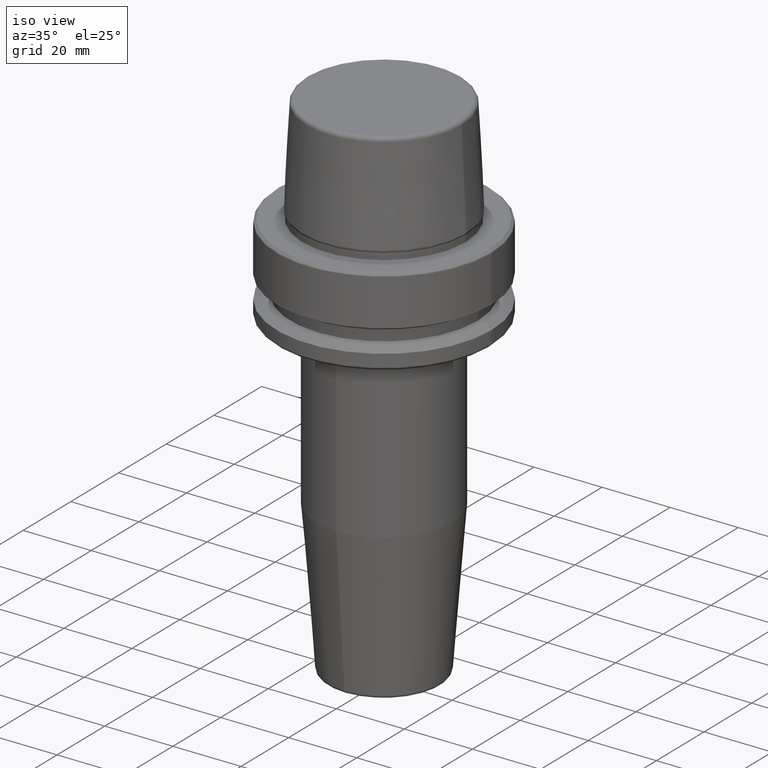
[diagram: clean part render]
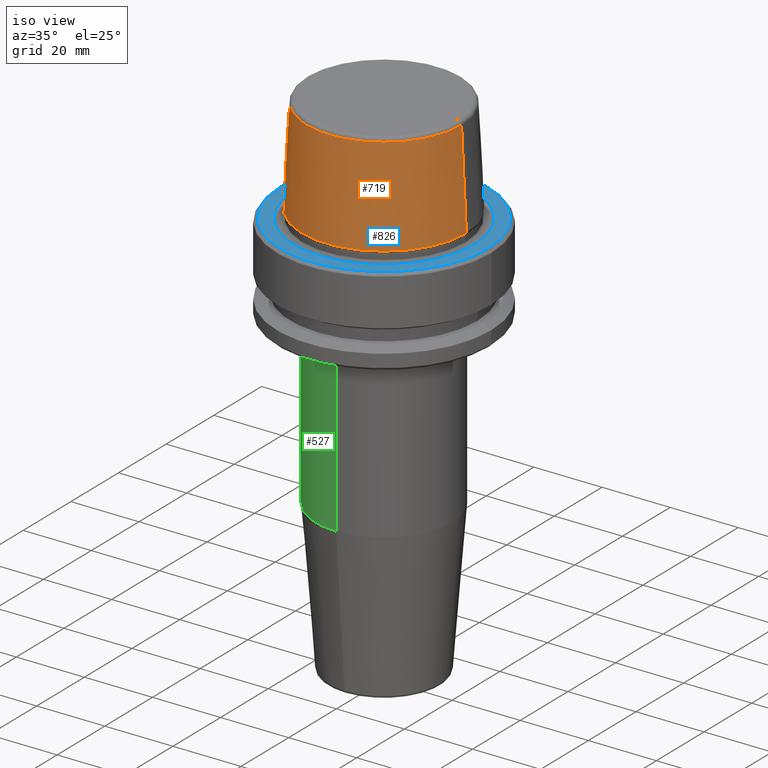
[diagram: same view with three faces highlighted in distinct colors, each labeled with its STEP entity id]
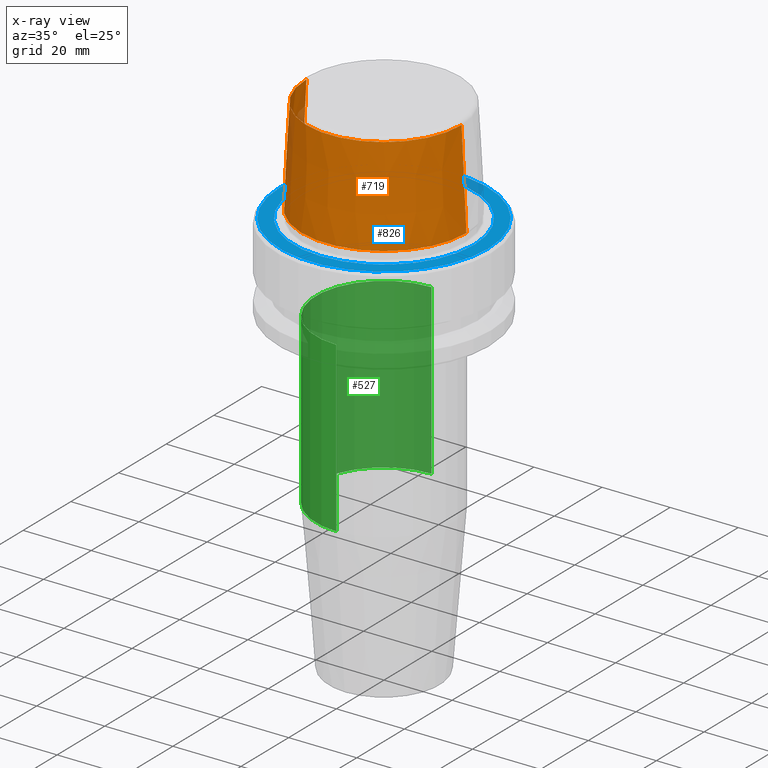
[diagram: x-ray of the same camera — body ghosted, the three highlighted faces saturated]
A machine part, iso view with three faces highlighted in distinct colors.
The next image is the same camera in x-ray (body ghosted, the three faces saturated) — at least one of them is partly hidden behind the body in this view.
Their STEP definitions:

[orange] entity #719 — the highlighted conical surface has half-angle 2.868 deg.
#15 = FACE_OUTER_BOUND ( 'NONE', #324, .T. ) ;
#43 = CARTESIAN_POINT ( 'NONE',  ( 0.0000000000000000000, 0.0000000000000000000, 30.76004333261571900 ) ) ;
#50 = VERTEX_POINT ( 'NONE', #445 ) ;
#146 = CARTESIAN_POINT ( 'NONE',  ( 0.0000000000000000000, 0.0000000000000000000, 2.500000000000002200 ) ) ;
#180 = VERTEX_POINT ( 'NONE', #740 ) ;
#189 = VERTEX_POINT ( 'NONE', #376 ) ;
#194 = CARTESIAN_POINT ( 'NONE',  ( -22.77957961851797100, 0.0000000000000000000, 30.76004333261571900 ) ) ;
#221 = DIRECTION ( 'NONE',  ( 1.000000000000000000, 0.0000000000000000000, 0.0000000000000000000 ) ) ;
#245 = AXIS2_PLACEMENT_3D ( 'NONE', #43, #1095, #221 ) ;
#269 = EDGE_CURVE ( 'NONE', #189, #50, #694, .T. ) ;
#292 = EDGE_CURVE ( 'NONE', #1230, #189, #939, .T. ) ;
#324 = EDGE_LOOP ( 'NONE', ( #1253, #351, #726, #895 ) ) ;
#335 = DIRECTION ( 'NONE',  ( -0.0000000000000000000, -0.0000000000000000000, 1.000000000000000000 ) ) ;
#351 = ORIENTED_EDGE ( 'NONE', *, *, #467, .F. ) ;
#361 = CARTESIAN_POINT ( 'NONE',  ( 0.0000000000000000000, 0.0000000000000000000, 2.500000000000002200 ) ) ;
#376 = CARTESIAN_POINT ( 'NONE',  ( -24.19537568275369200, 2.963078938405201500E-015, 2.500000000000002200 ) ) ;
#387 = AXIS2_PLACEMENT_3D ( 'NONE', #361, #335, #638 ) ;
#432 = DIRECTION ( 'NONE',  ( -1.000000000000000000, 0.0000000000000000000, 0.0000000000000000000 ) ) ;
#445 = CARTESIAN_POINT ( 'NONE',  ( 24.19537568275369200, 0.0000000000000000000, 2.500000000000002200 ) ) ;
#453 = VECTOR ( 'NONE', #1055, 1000.000000000000200 ) ;
#467 = EDGE_CURVE ( 'NONE', #1230, #180, #1216, .T. ) ;
#638 = DIRECTION ( 'NONE',  ( 1.000000000000000000, 0.0000000000000000000, 0.0000000000000000000 ) ) ;
#639 = DIRECTION ( 'NONE',  ( 0.05003611051310804400, 6.127656258166099700E-018, -0.9987474093306675200 ) ) ;
#694 = CIRCLE ( 'NONE', #387, 24.19537568275369200 ) ;
#719 = ADVANCED_FACE ( 'NONE', ( #15 ), #1242, .T. ) ;
#726 = ORIENTED_EDGE ( 'NONE', *, *, #292, .T. ) ;
#740 = CARTESIAN_POINT ( 'NONE',  ( 22.77957961851797100, 2.876386432489616700E-015, 30.76004333261571900 ) ) ;
#895 = ORIENTED_EDGE ( 'NONE', *, *, #269, .T. ) ;
#939 = LINE ( 'NONE', #1127, #453 ) ;
#981 = VECTOR ( 'NONE', #639, 1000.000000000000200 ) ;
#1026 = DIRECTION ( 'NONE',  ( 0.0000000000000000000, 0.0000000000000000000, -1.000000000000000000 ) ) ;
#1055 = DIRECTION ( 'NONE',  ( -0.05003611051310804400, 0.0000000000000000000, -0.9987474093306675200 ) ) ;
#1095 = DIRECTION ( 'NONE',  ( -0.0000000000000000000, -0.0000000000000000000, 1.000000000000000000 ) ) ;
#1104 = EDGE_CURVE ( 'NONE', #180, #50, #1258, .T. ) ;
#1127 = CARTESIAN_POINT ( 'NONE',  ( -24.19537568275369200, 0.0000000000000000000, 2.500000000000002200 ) ) ;
#1176 = AXIS2_PLACEMENT_3D ( 'NONE', #146, #1026, #432 ) ;
#1216 = CIRCLE ( 'NONE', #245, 22.77957961851797100 ) ;
#1230 = VERTEX_POINT ( 'NONE', #194 ) ;
#1232 = CARTESIAN_POINT ( 'NONE',  ( 24.19537568275369200, 2.963078938405201500E-015, 2.500000000000002200 ) ) ;
#1242 = CONICAL_SURFACE ( 'NONE', #1176, 24.19537568275369200, 0.05005701257455997400 ) ;
#1253 = ORIENTED_EDGE ( 'NONE', *, *, #1104, .F. ) ;
#1258 = LINE ( 'NONE', #1232, #981 ) ;

[blue] entity #826 — the highlighted planar face has unit normal (0, 0, -1).
#1 = ORIENTED_EDGE ( 'NONE', *, *, #755, .F. ) ;
#65 = DIRECTION ( 'NONE',  ( 1.000000000000000000, 0.0000000000000000000, 0.0000000000000000000 ) ) ;
#72 = ORIENTED_EDGE ( 'NONE', *, *, #1069, .F. ) ;
#81 = EDGE_LOOP ( 'NONE', ( #1, #72 ) ) ;
#115 = AXIS2_PLACEMENT_3D ( 'NONE', #1038, #736, #65 ) ;
#116 = FACE_BOUND ( 'NONE', #81, .T. ) ;
#120 = AXIS2_PLACEMENT_3D ( 'NONE', #415, #800, #598 ) ;
#156 = CIRCLE ( 'NONE', #264, 30.53431457505076100 ) ;
#216 = CARTESIAN_POINT ( 'NONE',  ( 0.0000000000000000000, 0.0000000000000000000, 0.0000000000000000000 ) ) ;
#264 = AXIS2_PLACEMENT_3D ( 'NONE', #216, #783, #585 ) ;
#309 = VERTEX_POINT ( 'NONE', #1050 ) ;
#337 = CARTESIAN_POINT ( 'NONE',  ( 0.0000000000000000000, 0.0000000000000000000, 0.0000000000000000000 ) ) ;
#399 = DIRECTION ( 'NONE',  ( -1.000000000000000000, 0.0000000000000000000, -0.0000000000000000000 ) ) ;
#415 = CARTESIAN_POINT ( 'NONE',  ( 0.0000000000000000000, 0.0000000000000000000, 0.0000000000000000000 ) ) ;
#435 = DIRECTION ( 'NONE',  ( 1.000000000000000000, 0.0000000000000000000, 0.0000000000000000000 ) ) ;
#459 = EDGE_CURVE ( 'NONE', #710, #309, #669, .T. ) ;
#473 = CIRCLE ( 'NONE', #115, 26.52499999999999900 ) ;
#554 = AXIS2_PLACEMENT_3D ( 'NONE', #337, #1021, #435 ) ;
#585 = DIRECTION ( 'NONE',  ( 1.000000000000000000, 0.0000000000000000000, 0.0000000000000000000 ) ) ;
#598 = DIRECTION ( 'NONE',  ( 1.000000000000000000, 0.0000000000000000000, 0.0000000000000000000 ) ) ;
#599 = EDGE_CURVE ( 'NONE', #309, #710, #156, .T. ) ;
#606 = VERTEX_POINT ( 'NONE', #678 ) ;
#669 = CIRCLE ( 'NONE', #120, 30.53431457505076100 ) ;
#677 = CARTESIAN_POINT ( 'NONE',  ( 0.0000000000000000000, 26.52499999999999900, -1.111307226797642000E-015 ) ) ;
#678 = CARTESIAN_POINT ( 'NONE',  ( -26.52499999999999900, 3.248375634738354300E-015, 0.0000000000000000000 ) ) ;
#682 = ORIENTED_EDGE ( 'NONE', *, *, #459, .T. ) ;
#699 = AXIS2_PLACEMENT_3D ( 'NONE', #677, #983, #399 ) ;
#710 = VERTEX_POINT ( 'NONE', #901 ) ;
#736 = DIRECTION ( 'NONE',  ( -0.0000000000000000000, -0.0000000000000000000, 1.000000000000000000 ) ) ;
#755 = EDGE_CURVE ( 'NONE', #1071, #606, #473, .T. ) ;
#783 = DIRECTION ( 'NONE',  ( -0.0000000000000000000, -0.0000000000000000000, 1.000000000000000000 ) ) ;
#800 = DIRECTION ( 'NONE',  ( -0.0000000000000000000, -0.0000000000000000000, 1.000000000000000000 ) ) ;
#819 = CARTESIAN_POINT ( 'NONE',  ( 26.52499999999999900, 0.0000000000000000000, 0.0000000000000000000 ) ) ;
#826 = ADVANCED_FACE ( 'NONE', ( #116, #1148 ), #882, .F. ) ;
#873 = EDGE_LOOP ( 'NONE', ( #952, #682 ) ) ;
#882 = PLANE ( 'NONE',  #699 ) ;
#901 = CARTESIAN_POINT ( 'NONE',  ( -30.53431457505076100, 3.756694181974138600E-015, 0.0000000000000000000 ) ) ;
#952 = ORIENTED_EDGE ( 'NONE', *, *, #599, .T. ) ;
#983 = DIRECTION ( 'NONE',  ( 0.0000000000000000000, 0.0000000000000000000, -1.000000000000000000 ) ) ;
#1021 = DIRECTION ( 'NONE',  ( -0.0000000000000000000, -0.0000000000000000000, 1.000000000000000000 ) ) ;
#1038 = CARTESIAN_POINT ( 'NONE',  ( 0.0000000000000000000, 0.0000000000000000000, 0.0000000000000000000 ) ) ;
#1048 = CIRCLE ( 'NONE', #554, 26.52499999999999900 ) ;
#1050 = CARTESIAN_POINT ( 'NONE',  ( 30.53431457505076100, 0.0000000000000000000, 0.0000000000000000000 ) ) ;
#1069 = EDGE_CURVE ( 'NONE', #606, #1071, #1048, .T. ) ;
#1071 = VERTEX_POINT ( 'NONE', #819 ) ;
#1148 = FACE_OUTER_BOUND ( 'NONE', #873, .T. ) ;

[green] entity #527 — the highlighted cylindrical surface (partial cylindrical patch) has radius 20 mm, axis along (-0, 0, -1).
#233 = EDGE_CURVE ( 'NONE', #986, #285, #996, .T. ) ;
#243 = AXIS2_PLACEMENT_3D ( 'NONE', #818, #624, #722 ) ;
#257 = EDGE_LOOP ( 'NONE', ( #405, #462, #1202, #734 ) ) ;
#265 = CARTESIAN_POINT ( 'NONE',  ( 0.0000000000000000000, -19.99999999999998200, -75.52828342338428100 ) ) ;
#279 = FACE_OUTER_BOUND ( 'NONE', #257, .T. ) ;
#285 = VERTEX_POINT ( 'NONE', #525 ) ;
#322 = DIRECTION ( 'NONE',  ( 0.0000000000000000000, 0.0000000000000000000, -1.000000000000000000 ) ) ;
#338 = CARTESIAN_POINT ( 'NONE',  ( 0.0000000000000000000, 19.99999999999998900, -120.0000000000000000 ) ) ;
#405 = ORIENTED_EDGE ( 'NONE', *, *, #724, .F. ) ;
#418 = CIRCLE ( 'NONE', #243, 19.99999999999997900 ) ;
#456 = CARTESIAN_POINT ( 'NONE',  ( 2.449293598294704900E-015, -19.99999999999998600, -26.00000000000001100 ) ) ;
#461 = VERTEX_POINT ( 'NONE', #265 ) ;
#462 = ORIENTED_EDGE ( 'NONE', *, *, #658, .T. ) ;
#502 = LINE ( 'NONE', #815, #729 ) ;
#525 = CARTESIAN_POINT ( 'NONE',  ( 2.449293598294704500E-015, 19.99999999999998200, -75.52828342338428100 ) ) ;
#527 = ADVANCED_FACE ( 'NONE', ( #279 ), #1245, .T. ) ;
#566 = CIRCLE ( 'NONE', #767, 19.99999999999998600 ) ;
#624 = DIRECTION ( 'NONE',  ( -0.0000000000000000000, 2.605631487547559100E-017, -1.000000000000000000 ) ) ;
#658 = EDGE_CURVE ( 'NONE', #738, #986, #566, .T. ) ;
#692 = CARTESIAN_POINT ( 'NONE',  ( 0.0000000000000000000, 19.99999999999998600, -26.00000000000001100 ) ) ;
#722 = DIRECTION ( 'NONE',  ( 0.0000000000000000000, 1.000000000000000000, 0.0000000000000000000 ) ) ;
#724 = EDGE_CURVE ( 'NONE', #738, #461, #502, .T. ) ;
#729 = VECTOR ( 'NONE', #1220, 1000.000000000000000 ) ;
#734 = ORIENTED_EDGE ( 'NONE', *, *, #795, .F. ) ;
#738 = VERTEX_POINT ( 'NONE', #456 ) ;
#748 = DIRECTION ( 'NONE',  ( -0.0000000000000000000, 2.605631487547559100E-017, -1.000000000000000000 ) ) ;
#767 = AXIS2_PLACEMENT_3D ( 'NONE', #1210, #322, #897 ) ;
#778 = VECTOR ( 'NONE', #748, 1000.000000000000000 ) ;
#795 = EDGE_CURVE ( 'NONE', #461, #285, #418, .T. ) ;
#815 = CARTESIAN_POINT ( 'NONE',  ( 2.449293598294704900E-015, -19.99999999999998200, -120.0000000000000000 ) ) ;
#818 = CARTESIAN_POINT ( 'NONE',  ( 0.0000000000000000000, 1.290524548121498600E-015, -75.52828342338428100 ) ) ;
#897 = DIRECTION ( 'NONE',  ( 1.000000000000000000, 0.0000000000000000000, 0.0000000000000000000 ) ) ;
#936 = DIRECTION ( 'NONE',  ( -0.0000000000000000000, 2.605631487547559100E-017, -1.000000000000000000 ) ) ;
#986 = VERTEX_POINT ( 'NONE', #692 ) ;
#996 = LINE ( 'NONE', #338, #778 ) ;
#1061 = DIRECTION ( 'NONE',  ( 0.0000000000000000000, 1.000000000000000000, 0.0000000000000000000 ) ) ;
#1080 = CARTESIAN_POINT ( 'NONE',  ( 0.0000000000000000000, 2.449293598294705300E-015, -120.0000000000000000 ) ) ;
#1138 = AXIS2_PLACEMENT_3D ( 'NONE', #1080, #936, #1061 ) ;
#1202 = ORIENTED_EDGE ( 'NONE', *, *, #233, .T. ) ;
#1210 = CARTESIAN_POINT ( 'NONE',  ( 0.0000000000000000000, 0.0000000000000000000, -26.00000000000001100 ) ) ;
#1220 = DIRECTION ( 'NONE',  ( -0.0000000000000000000, 2.605631487547559100E-017, -1.000000000000000000 ) ) ;
#1245 = CYLINDRICAL_SURFACE ( 'NONE', #1138, 19.99999999999998600 ) ;